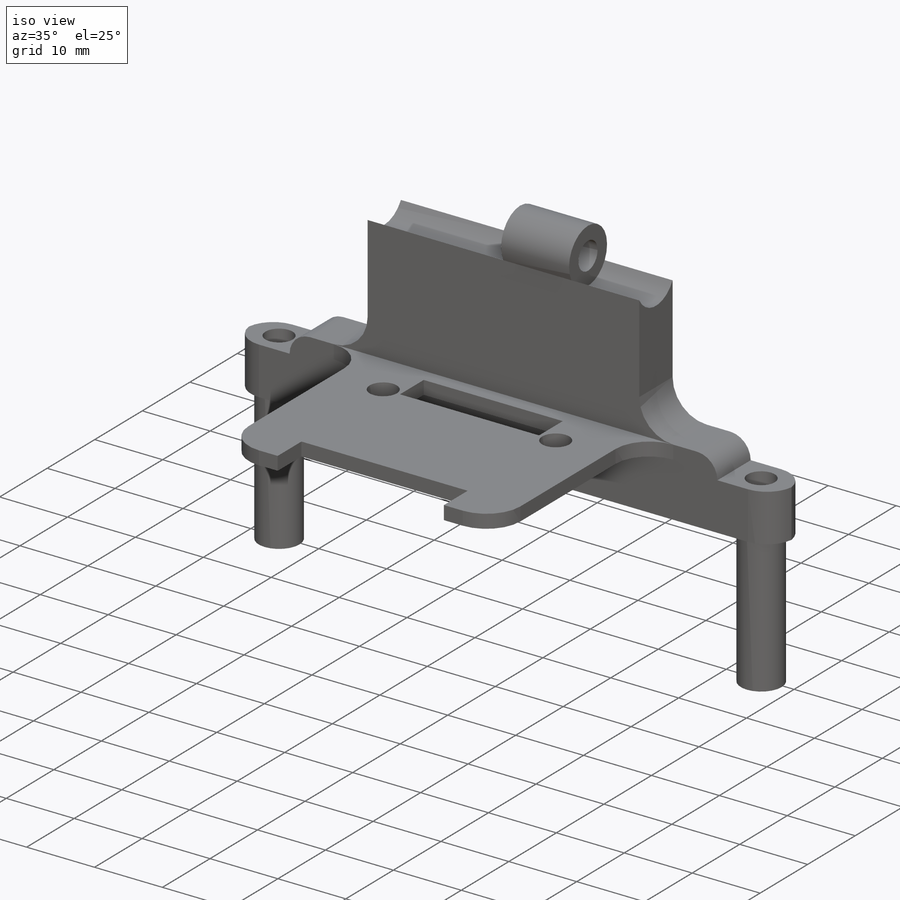
[diagram: iso view]
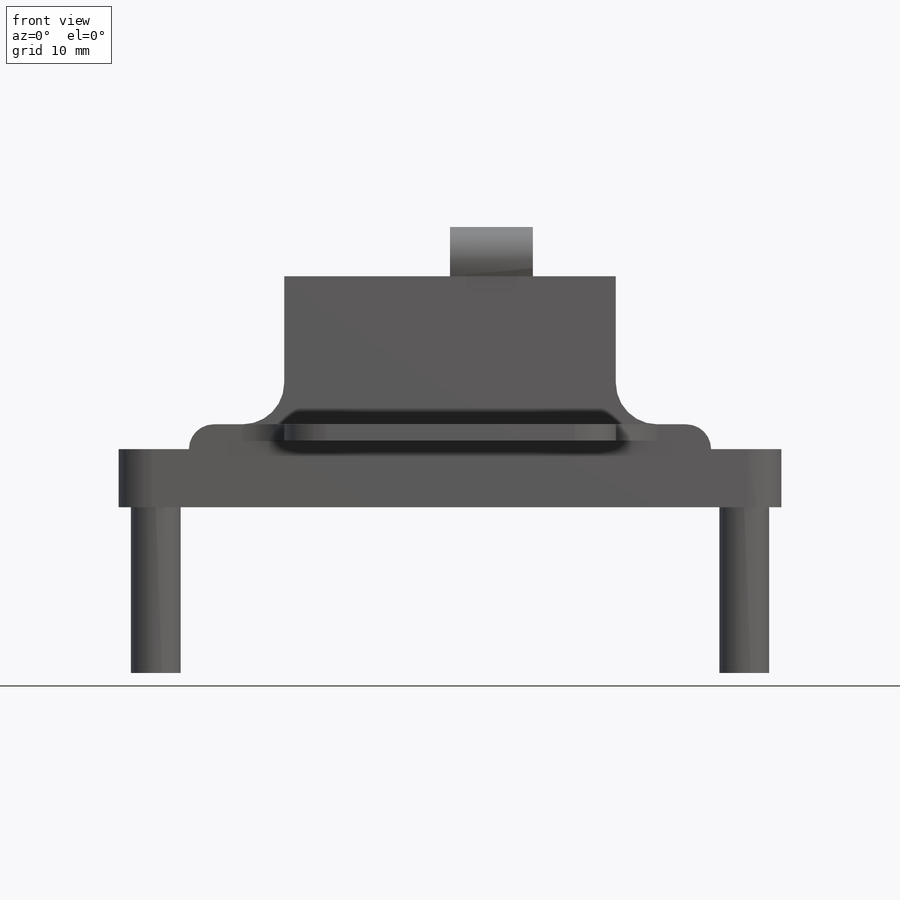
[diagram: front view]
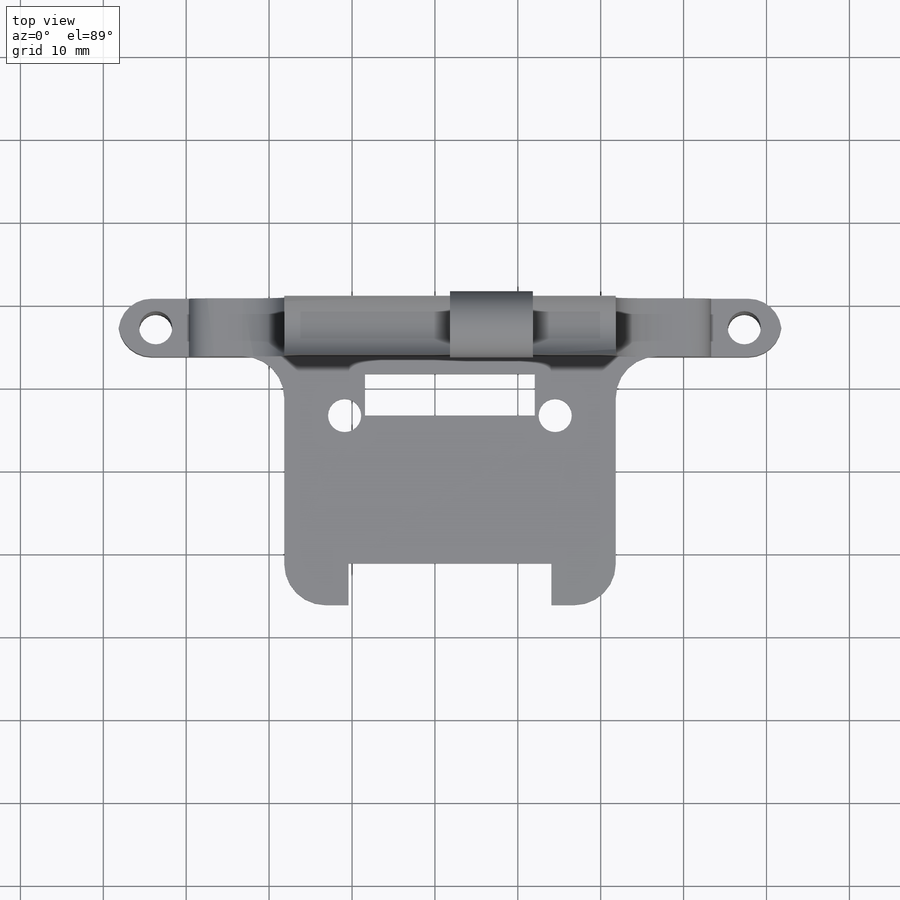
[diagram: top view]
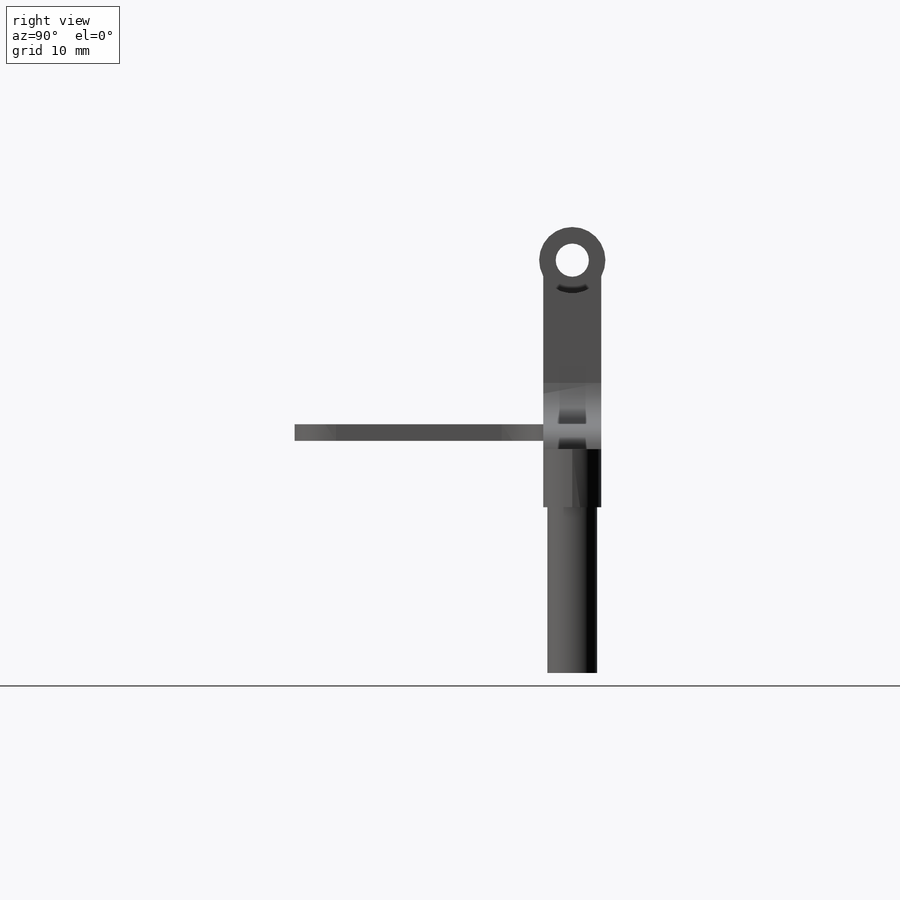
[diagram: right view]
SOLIDWORKS PART (.sldprt)
format: sldprt  version: not decoded by parser v0  size: 388,096 bytes
history: native  units: mm
features: sketch x11, cut_extrude x7, extrude x4, fillet x4, material x1 (+13 scaffold rows collapsed)
feature tree (40):
  scaffold x13  (default folders/planes/origin — collapsed)
  material  "Material <not specified>"
  sketch  "Sketch1"  dims[D1=7.0mm D2=80.0mm]
  extrude  "Boss-Extrude1"  Depth=30mm
  sketch  "Sketch2"  dims[c1.D1=6.0mm c1.D2=6.0mm c1.D3=3.0mm c1.D4=3.0mm c1.D5=3.0mm c1.D6=3.0mm c1.D7=4.0mm c1.D8=4.0mm c2.D3=71.0mm c2.D4=4.5mm c2.D5=3.5mm c2.D6=3.5mm]
  extrude  "Boss-Extrude2"  Depth=20mm
  sketch  "Sketch7"  dims[D1=10.0mm D2=10.0mm D3=40.0mm D4=20.0mm]
  cut_extrude  "Cut-Extrude1"  [1 undecoded]
  sketch  "Sketch9"  dims[D1=8.2mm]
  cut_extrude  "Cut-Extrude2"  [1 undecoded]
  sketch  "Sketch11"  dims[D1=8.0mm D2=4.0mm]
  extrude  "Boss-Extrude6"  Depth=20mm
  fillet  "Fillet1"  Radius=5mm
  fillet  "Fillet2"  Radius=4mm
  sketch  "Sketch14"  dims[D1=10.0mm D2=2.0mm D3=0.0mm D4=0.0mm]
  extrude  "Boss-Extrude8"  Depth=30mm
  fillet  "Fillet4"  Radius=5mm
  sketch  "Sketch15"  dims[D1=4.0mm D2=4.0mm]
  cut_extrude  "Cut-Extrude3"  [1 undecoded]
  sketch  "Sketch16"  dims[D1=0.0mm D2=5.0mm D3=5.0mm D4=5.0mm D5=3.0mm D6=3.0mm D7=5.0mm D8=0.0mm]
  cut_extrude  "Cut-Extrude4"  [1 undecoded]
  cut_extrude  "Cut-Extrude5"  [1 undecoded]
  sketch  "Sketch11<2>"  dims[D1=10.0mm]
  sketch  "Sketch17"  dims[D1=4.0mm D2=4.0mm]
  cut_extrude  "Cut-Extrude6"  [1 undecoded]
  sketch  "Sketch18"  dims[D2=6.5mm D4=6.5mm D1=0.0mm D3=0.0mm]
  cut_extrude  "Cut-Extrude7"  Depth=3mm
  fillet  "Fillet5"  Radius=3mm
decode coverage: 20 of 26 modeling features carry decoded parameters
note: 6 parameter values undecoded
summary: no parameter record found for 6 features
note: suppression state not decoded; provenance and decode notes live in map.json
